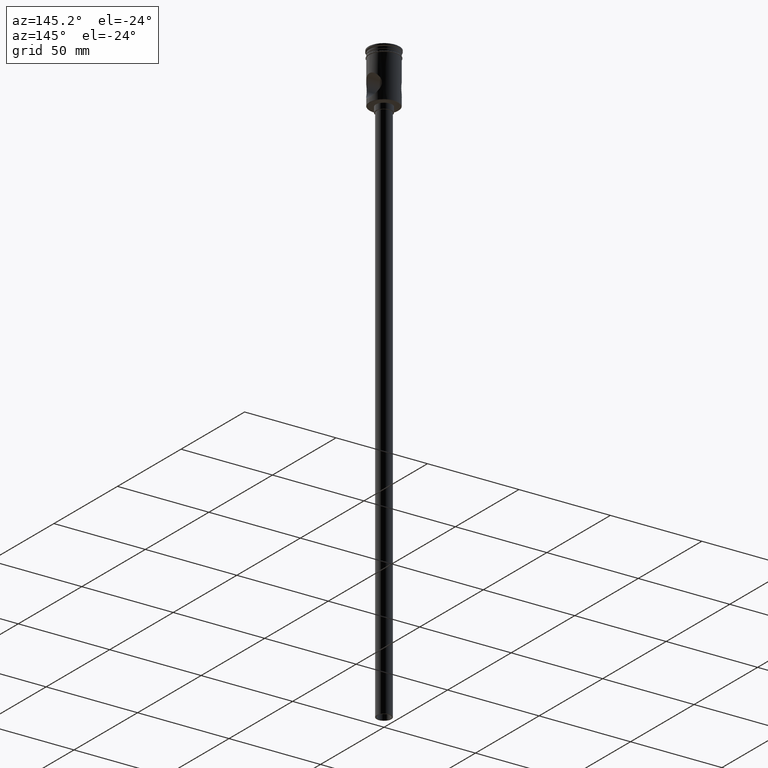
[diagram: clean part render]
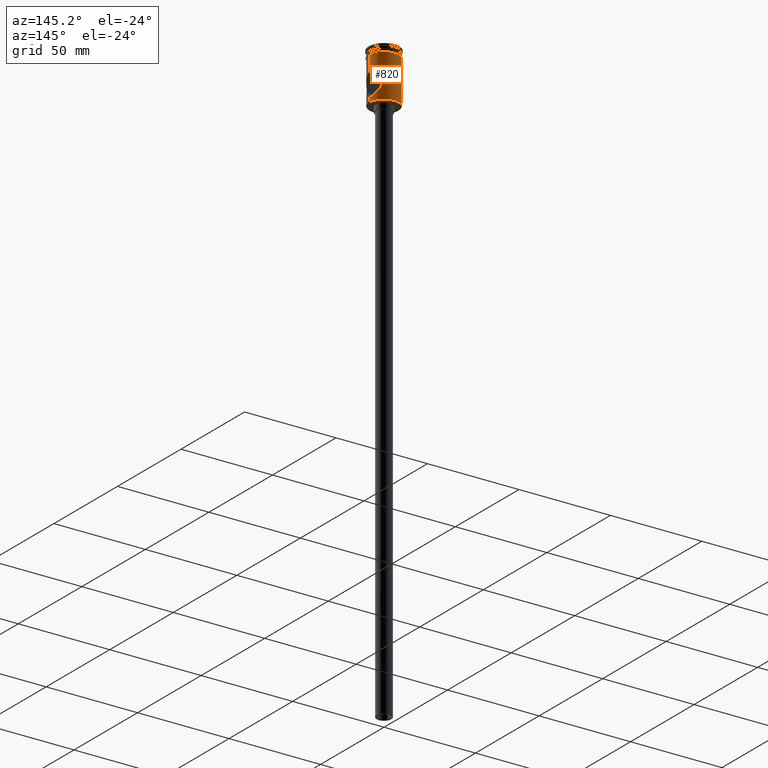
[diagram: same view with one face highlighted and labeled with its STEP entity id]
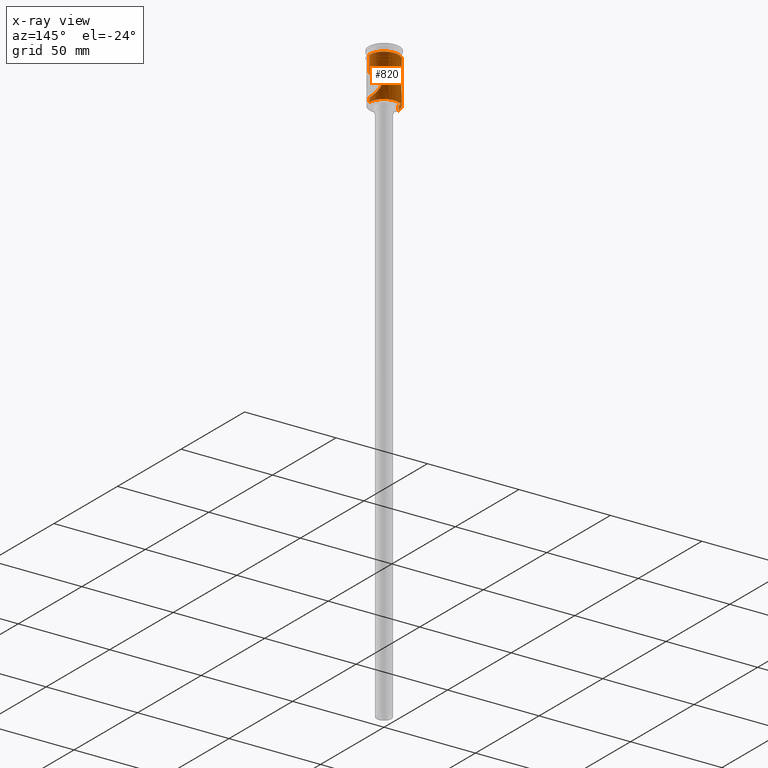
[diagram: x-ray of the same camera — body ghosted, the highlighted face saturated]
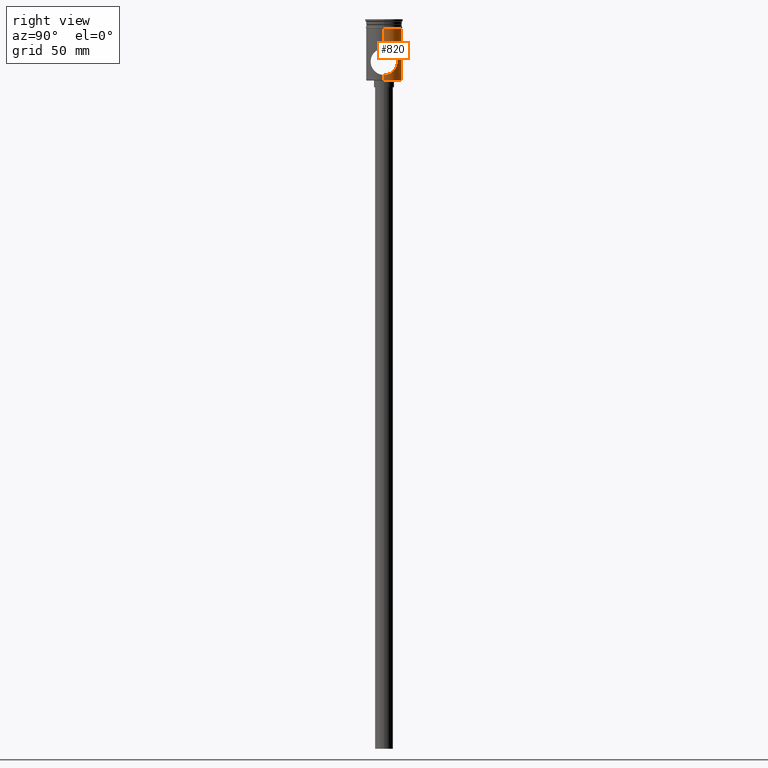
[diagram: same view with one face highlighted and labeled with its STEP entity id]
A machine part, auxiliary view. The second image highlights one B-rep face of the part: STEP entity #820.
The next image is the same camera in x-ray: the body ghosted, the highlighted face saturated — about 0% of this face is hidden behind the body in this view.
A second angle (right view) of the same face is appended — the face is thin or edge-on in the first view.
In plain terms, the highlighted cylindrical surface (edge-blend (fillet) strip) has radius 8 mm, axis along (-0, -0, 1).
Its self-contained STEP definition (entity closure, byte-faithful):
#2 = CARTESIAN_POINT ( 'NONE',  ( 7.837185563733797267, 1.617777997116385258, -13.21872241145037563 ) ) ;
#10 = CIRCLE ( 'NONE', #1136, 8.000000000000000000 ) ;
#22 = ORIENTED_EDGE ( 'NONE', *, *, #52, .F. ) ;
#46 = CARTESIAN_POINT ( 'NONE',  ( -5.528728542356219577, 5.782767647903219732, -17.38791116192859931 ) ) ;
#47 = CARTESIAN_POINT ( 'NONE',  ( -7.999999999999996447, 9.797174393178821713E-16, -27.30000000000006111 ) ) ;
#52 = EDGE_CURVE ( 'NONE', #198, #1241, #10, .T. ) ;
#59 = CARTESIAN_POINT ( 'NONE',  ( -5.717670742267800144, 5.596336919971244939, -16.82796284348983917 ) ) ;
#73 = LINE ( 'NONE', #205, #896 ) ;
#106 = CARTESIAN_POINT ( 'NONE',  ( 6.095265202635740565, 5.188384097884398471, -15.96330462474424650 ) ) ;
#114 = CARTESIAN_POINT ( 'NONE',  ( 5.934194063793421847, 5.369288296893337531, -16.29430799600839208 ) ) ;
#134 = VERTEX_POINT ( 'NONE', #47 ) ;
#142 = FACE_OUTER_BOUND ( 'NONE', #328, .T. ) ;
#146 = CARTESIAN_POINT ( 'NONE',  ( 8.000000000000000000, 0.000000000000000000, -3.999999999999997335 ) ) ;
#159 = CARTESIAN_POINT ( 'NONE',  ( -7.837238599853709964, 1.617585761159322510, -13.21864966473142644 ) ) ;
#180 = CARTESIAN_POINT ( 'NONE',  ( -5.643916026891298898, 5.673596022587067189, -20.98979656833889251 ) ) ;
#198 = VERTEX_POINT ( 'NONE', #146 ) ;
#205 = CARTESIAN_POINT ( 'NONE',  ( 7.999999999999996447, 0.000000000000000000, 0.000000000000000000 ) ) ;
#212 = CARTESIAN_POINT ( 'NONE',  ( 5.933514355146050967, 5.370016379611009860, -21.70410386792428170 ) ) ;
#219 = CARTESIAN_POINT ( 'NONE',  ( 5.717181671610946481, 5.596851870810901630, -21.17084374095739463 ) ) ;
#228 = CARTESIAN_POINT ( 'NONE',  ( 5.291508588819593406, 5.999994737873667106, -19.40979141361455262 ) ) ;
#236 = CARTESIAN_POINT ( 'NONE',  ( 7.528683465599922187, 2.731923562265712313, -13.64343887222187135 ) ) ;
#243 = CARTESIAN_POINT ( 'NONE',  ( 5.527877811876816594, 5.783575200193208588, -17.39087967744914920 ) ) ;
#279 = CARTESIAN_POINT ( 'NONE',  ( -7.999999999999996447, 9.797174393178821713E-16, 0.000000000000000000 ) ) ;
#294 = CARTESIAN_POINT ( 'NONE',  ( -5.291564416442851915, 5.999945502536777830, -19.41375567364516641 ) ) ;
#301 = CARTESIAN_POINT ( 'NONE',  ( -5.519437917285256567, 5.792285672141820108, -20.61683396324643169 ) ) ;
#325 = CARTESIAN_POINT ( 'NONE',  ( -8.000000000000000000, 0.2076584939606447855, -25.00000000000001066 ) ) ;
#328 = EDGE_LOOP ( 'NONE', ( #949, #1016, #941, #450, #22, #1228, #1042, #1198 ) ) ;
#337 = CARTESIAN_POINT ( 'NONE',  ( 6.094205644570493519, 5.189600670481776312, -22.03454661334871290 ) ) ;
#344 = CARTESIAN_POINT ( 'NONE',  ( 5.474514516413027998, 5.833807645266261943, -20.41669993575522923 ) ) ;
#351 = CARTESIAN_POINT ( 'NONE',  ( 7.392183792285975663, 3.078563709593460818, -13.83574790663121590 ) ) ;
#355 = CARTESIAN_POINT ( 'NONE',  ( 7.999999999999996447, 3.674711311745778243E-24, -13.00000000000000533 ) ) ;
#359 = CARTESIAN_POINT ( 'NONE',  ( 8.000000000000005329, 0.4110175701281992278, -13.00000000000000000 ) ) ;
#412 = CARTESIAN_POINT ( 'NONE',  ( -5.340955530264040796, 5.957261304845339112, -19.82204812401646876 ) ) ;
#418 = CARTESIAN_POINT ( 'NONE',  ( -5.650483228049789197, 5.663857365279294953, -17.01003722717182498 ) ) ;
#437 = CARTESIAN_POINT ( 'NONE',  ( -7.873944427309549354, 1.428810887794780049, -24.83093286763472918 ) ) ;
#450 = ORIENTED_EDGE ( 'NONE', *, *, #963, .T. ) ;
#460 = VERTEX_POINT ( 'NONE', #983 ) ;
#463 = CARTESIAN_POINT ( 'NONE',  ( 5.527830583457348013, 5.783619756404971390, -20.60895157510370268 ) ) ;
#470 = CARTESIAN_POINT ( 'NONE',  ( 7.522790365168889437, 2.727851025529601348, -24.34760159016909142 ) ) ;
#478 = CARTESIAN_POINT ( 'NONE',  ( 7.845111153738295151, 1.617379738080571894, -24.79213429196722984 ) ) ;
#482 = VERTEX_POINT ( 'NONE', #1000 ) ;
#494 = EDGE_CURVE ( 'NONE', #482, #460, #638, .T. ) ;
#499 = CARTESIAN_POINT ( 'NONE',  ( -5.937193840094636244, 5.363245192895813140, -21.69666719771004892 ) ) ;
#507 = DIRECTION ( 'NONE',  ( 1.000000000000000000, 0.000000000000000000, 0.000000000000000000 ) ) ;
#521 = CARTESIAN_POINT ( 'NONE',  ( -5.351298131410346492, 5.946815791029208320, -18.17692857331259404 ) ) ;
#536 = DIRECTION ( 'NONE',  ( -0.000000000000000000, -0.000000000000000000, 1.000000000000000000 ) ) ;
#559 = CARTESIAN_POINT ( 'NONE',  ( -7.991786201921672550, 0.4171226887462312072, -24.98906086098487123 ) ) ;
#562 = CARTESIAN_POINT ( 'NONE',  ( 7.697512327894634687, 2.187332674909133967, -13.40941737064048489 ) ) ;
#566 = CARTESIAN_POINT ( 'NONE',  ( -7.999999999999996447, 0.000000000000000000, -25.00000000000000000 ) ) ;
#569 = CARTESIAN_POINT ( 'NONE',  ( 7.095043372362062506, 3.712647680833710329, -23.72917063698660911 ) ) ;
#577 = CARTESIAN_POINT ( 'NONE',  ( 6.600129246405443517, 4.531693863514761667, -22.95038707538193634 ) ) ;
#584 = CARTESIAN_POINT ( 'NONE',  ( 5.648998666191807239, 5.665331633315698667, -20.98569890523691583 ) ) ;
#616 = CARTESIAN_POINT ( 'NONE',  ( -8.000000000000000000, 9.797174393178825657E-16, -3.999999999999997335 ) ) ;
#619 = CARTESIAN_POINT ( 'NONE',  ( -7.991997215772791208, 0.4127757007396791189, -13.01065792661720621 ) ) ;
#624 = AXIS2_PLACEMENT_3D ( 'NONE', #989, #754, #507 ) ;
#625 = EDGE_CURVE ( 'NONE', #753, #198, #809, .T. ) ;
#634 = VERTEX_POINT ( 'NONE', #1422 ) ;
#637 = CARTESIAN_POINT ( 'NONE',  ( -5.932300773519818549, 5.371293148560216224, -16.29886334358921118 ) ) ;
#638 = B_SPLINE_CURVE_WITH_KNOTS ( 'NONE', 3,
 ( #745, #643, #619, #977, #1445, #1107, #159, #859, #1341, #1113, #1452, #1467, #1330, #1216, #1100, #883, #637, #59, #418, #46, #756, #1237, #521, #770, #990, #294, #412, #301, #180, #1123, #499, #966, #1438, #852, #1369, #1244, #1267, #1257, #904, #1362, #1382, #1490, #1480, #1145, #437, #889, #1375, #559, #325, #566 ),
 .UNSPECIFIED., .F., .F.,
 ( 4, 2, 2, 2, 2, 2, 2, 2, 2, 2, 2, 2, 2, 2, 2, 2, 2, 2, 2, 2, 2, 2, 2, 2, 4 ),
 ( 0.01965158138171595875, 0.02026440806685870719, 0.02087723475200145562, 0.02149006143714420405, 0.02210288812228695249, 0.02332854149257245283, 0.02455419486285795316, 0.02577984823314345697, 0.02700550160342895384, 0.02761832828857171268, 0.02823115497371446458, 0.02884398165885721996, 0.02945680834399997533, 0.03068246171428548608, 0.03190811508457099682, 0.03252094176971375566, 0.03313376845485650757, 0.03435942182514201831, 0.03497224851028477716, 0.03558507519542753600, 0.03681072856571306062, 0.03742355525085581947, 0.03803638193599857831, 0.03864920862114134409, 0.03926203530628410293 ),
 .UNSPECIFIED. ) ;
#643 = CARTESIAN_POINT ( 'NONE',  ( -8.000000000000005329, 0.2050786897151790633, -13.00000000000000355 ) ) ;
#674 = CIRCLE ( 'NONE', #749, 7.999999999999996447 ) ;
#684 = CARTESIAN_POINT ( 'NONE',  ( 6.933994888437764459, 4.002208169122734027, -23.48599343389724581 ) ) ;
#691 = CARTESIAN_POINT ( 'NONE',  ( 5.303431297491207452, 5.989541423528398134, -18.59082079987659952 ) ) ;
#702 = CARTESIAN_POINT ( 'NONE',  ( 7.875627092851996913, 1.419784017982118174, -13.16679506876979033 ) ) ;
#708 = CARTESIAN_POINT ( 'NONE',  ( 7.999999999999996447, 3.674711311745778243E-24, -13.00000000000000533 ) ) ;
#741 = B_SPLINE_CURVE_WITH_KNOTS ( 'NONE', 3,
 ( #1031, #1501, #1386, #478, #823, #1509, #470, #914, #1154, #569, #684, #577, #1394, #337, #212, #219, #584, #463, #344, #805, #228, #1401, #691, #1162, #1047, #1408, #243, #1171, #1038, #114, #106, #1054, #1295, #812, #1517, #351, #236, #562, #1284, #2, #702, #937, #359, #708 ),
 .UNSPECIFIED., .F., .F.,
 ( 4, 2, 2, 2, 2, 2, 2, 2, 2, 2, 2, 2, 2, 2, 2, 2, 2, 2, 2, 2, 2, 4 ),
 ( 0.000000000000000000, 0.001228223836357238098, 0.002456447672714476196, 0.003070559590893096654, 0.003684671509071716679, 0.004912895345428957596, 0.006141119181786197645, 0.007369343018143437694, 0.007983454936322062490, 0.008597566854500688152, 0.009825790690857941212, 0.01043990260903657034, 0.01105401452721520121, 0.01166812644539383034, 0.01228223836357246121, 0.01351046219992971080, 0.01473868603628695692, 0.01596690987264420825, 0.01719513370900145610, 0.01780924562718008350, 0.01842335754535870743, 0.01965158138171595528 ),
 .UNSPECIFIED. ) ;
#745 = CARTESIAN_POINT ( 'NONE',  ( -7.999999999999996447, 9.797174356432676922E-16, -13.00000000000000533 ) ) ;
#749 = AXIS2_PLACEMENT_3D ( 'NONE', #1373, #1026, #1017 ) ;
#753 = VERTEX_POINT ( 'NONE', #355 ) ;
#754 = DIRECTION ( 'NONE',  ( -0.000000000000000000, -0.000000000000000000, 1.000000000000000000 ) ) ;
#756 = CARTESIAN_POINT ( 'NONE',  ( -5.474655730134190712, 5.833676180865436933, -17.58271699258815346 ) ) ;
#760 = CYLINDRICAL_SURFACE ( 'NONE', #624, 7.999999999999996447 ) ;
#770 = CARTESIAN_POINT ( 'NONE',  ( -5.303887827319022641, 5.989138807782576457, -18.58493257538529875 ) ) ;
#805 = CARTESIAN_POINT ( 'NONE',  ( 5.341952933818355120, 5.956343020881682548, -19.82666753736794618 ) ) ;
#807 = CARTESIAN_POINT ( 'NONE',  ( 7.999999999999996447, 0.000000000000000000, -27.30000000000006111 ) ) ;
#809 = LINE ( 'NONE', #952, #1014 ) ;
#812 = CARTESIAN_POINT ( 'NONE',  ( 6.935409427810199645, 3.999736926290286210, -14.51184028921589508 ) ) ;
#820 = ADVANCED_FACE ( 'NONE', ( #142 ), #760, .T. ) ;
#823 = CARTESIAN_POINT ( 'NONE',  ( 7.753317466694376492, 2.007594612796118838, -24.66794618566808239 ) ) ;
#852 = CARTESIAN_POINT ( 'NONE',  ( -6.428408221799558397, 4.769379950103072474, -22.65971221525529344 ) ) ;
#859 = CARTESIAN_POINT ( 'NONE',  ( -7.748015674478848425, 2.001785621332211385, -13.34018995724741607 ) ) ;
#883 = CARTESIAN_POINT ( 'NONE',  ( -6.092548161367386861, 5.191587824295140763, -15.96869401757640716 ) ) ;
#889 = CARTESIAN_POINT ( 'NONE',  ( -7.935826362832939296, 1.031097151778473719, -24.91423007022369518 ) ) ;
#895 = VECTOR ( 'NONE', #536, 1000.000000000000000 ) ;
#896 = VECTOR ( 'NONE', #1007, 1000.000000000000000 ) ;
#904 = CARTESIAN_POINT ( 'NONE',  ( -7.169789722930493880, 3.553058473854127985, -23.83860449815402305 ) ) ;
#914 = CARTESIAN_POINT ( 'NONE',  ( 7.390068150002869096, 3.069273339745732798, -24.15922233971244637 ) ) ;
#935 = DIRECTION ( 'NONE',  ( -0.000000000000000000, -0.000000000000000000, 1.000000000000000000 ) ) ;
#937 = CARTESIAN_POINT ( 'NONE',  ( 7.968510204580123713, 0.8173127755210328749, -13.04179007278580293 ) ) ;
#941 = ORIENTED_EDGE ( 'NONE', *, *, #494, .F. ) ;
#949 = ORIENTED_EDGE ( 'NONE', *, *, #984, .T. ) ;
#952 = CARTESIAN_POINT ( 'NONE',  ( 7.999999999999996447, 0.000000000000000000, 0.000000000000000000 ) ) ;
#963 = EDGE_CURVE ( 'NONE', #482, #1241, #1488, .T. ) ;
#966 = CARTESIAN_POINT ( 'NONE',  ( -6.096832542624039064, 5.181052271612227145, -22.03201423696314265 ) ) ;
#977 = CARTESIAN_POINT ( 'NONE',  ( -7.960178332295269499, 0.8233858112076458680, -13.05318252701360215 ) ) ;
#983 = CARTESIAN_POINT ( 'NONE',  ( -7.999999999999996447, 0.000000000000000000, -25.00000000000000000 ) ) ;
#984 = EDGE_CURVE ( 'NONE', #1175, #134, #674, .T. ) ;
#989 = CARTESIAN_POINT ( 'NONE',  ( 0.000000000000000000, 0.000000000000000000, 0.000000000000000000 ) ) ;
#990 = CARTESIAN_POINT ( 'NONE',  ( -5.291471813663452650, 6.000027170513403618, -18.79430872448704548 ) ) ;
#1000 = CARTESIAN_POINT ( 'NONE',  ( -7.999999999999996447, 9.797174356432676922E-16, -13.00000000000000533 ) ) ;
#1004 = CARTESIAN_POINT ( 'NONE',  ( -7.999999999999996447, 9.797174393178821713E-16, 0.000000000000000000 ) ) ;
#1007 = DIRECTION ( 'NONE',  ( -0.000000000000000000, -0.000000000000000000, 1.000000000000000000 ) ) ;
#1014 = VECTOR ( 'NONE', #935, 1000.000000000000000 ) ;
#1016 = ORIENTED_EDGE ( 'NONE', *, *, #1251, .T. ) ;
#1017 = DIRECTION ( 'NONE',  ( -1.000000000000000000, 0.000000000000000000, 0.000000000000000000 ) ) ;
#1026 = DIRECTION ( 'NONE',  ( -0.000000000000000000, -0.000000000000000000, 1.000000000000000000 ) ) ;
#1031 = CARTESIAN_POINT ( 'NONE',  ( 7.999999999999996447, 0.000000000000000000, -25.00000000000000000 ) ) ;
#1038 = CARTESIAN_POINT ( 'NONE',  ( 5.717260744181801968, 5.596776624407745260, -16.82891779856496584 ) ) ;
#1042 = ORIENTED_EDGE ( 'NONE', *, *, #1469, .F. ) ;
#1047 = CARTESIAN_POINT ( 'NONE',  ( 5.385705311345802215, 5.915896059439944565, -17.97877459268462985 ) ) ;
#1054 = CARTESIAN_POINT ( 'NONE',  ( 6.428305707969257377, 4.769535948342530141, -15.34044057477574263 ) ) ;
#1080 = DIRECTION ( 'NONE',  ( -0.000000000000000000, -0.000000000000000000, 1.000000000000000000 ) ) ;
#1100 = CARTESIAN_POINT ( 'NONE',  ( -6.426120009460147386, 4.772495035090829951, -15.34422494722665498 ) ) ;
#1107 = CARTESIAN_POINT ( 'NONE',  ( -7.875112291323477898, 1.422312626392037371, -13.16749109191733957 ) ) ;
#1113 = CARTESIAN_POINT ( 'NONE',  ( -7.526744538711455768, 2.737435864263675800, -13.64615235571891283 ) ) ;
#1123 = CARTESIAN_POINT ( 'NONE',  ( -5.859839614964069909, 5.447306643968808260, -21.52271597277527704 ) ) ;
#1136 = AXIS2_PLACEMENT_3D ( 'NONE', #1402, #1302, #1270 ) ;
#1145 = CARTESIAN_POINT ( 'NONE',  ( -7.835858405065169840, 1.624274161447295306, -24.77948060674688691 ) ) ;
#1154 = CARTESIAN_POINT ( 'NONE',  ( 7.318622431870950074, 3.235523761949524069, -24.05653912422262408 ) ) ;
#1162 = CARTESIAN_POINT ( 'NONE',  ( 5.350380422783078238, 5.947639811124362907, -18.18292303966837764 ) ) ;
#1171 = CARTESIAN_POINT ( 'NONE',  ( 5.649101405964834122, 5.665229783906036154, -17.01400357395085550 ) ) ;
#1175 = VERTEX_POINT ( 'NONE', #807 ) ;
#1198 = ORIENTED_EDGE ( 'NONE', *, *, #1424, .F. ) ;
#1216 = CARTESIAN_POINT ( 'NONE',  ( -6.599412474671010109, 4.532668071879429661, -15.05083651367930742 ) ) ;
#1228 = ORIENTED_EDGE ( 'NONE', *, *, #625, .F. ) ;
#1237 = CARTESIAN_POINT ( 'NONE',  ( -5.386132118162890059, 5.915506229595402843, -17.97664524532638453 ) ) ;
#1241 = VERTEX_POINT ( 'NONE', #616 ) ;
#1244 = CARTESIAN_POINT ( 'NONE',  ( -6.849379830468325991, 4.136484081211206920, -23.35028667483849318 ) ) ;
#1251 = EDGE_CURVE ( 'NONE', #134, #460, #1319, .T. ) ;
#1257 = CARTESIAN_POINT ( 'NONE',  ( -7.092607887154919410, 3.704399776580871606, -23.72372303530257298 ) ) ;
#1267 = CARTESIAN_POINT ( 'NONE',  ( -6.932510933914958429, 3.995992554649490547, -23.47975228357175581 ) ) ;
#1270 = DIRECTION ( 'NONE',  ( 1.000000000000000000, 0.000000000000000000, 0.000000000000000000 ) ) ;
#1284 = CARTESIAN_POINT ( 'NONE',  ( 7.748219018226238042, 2.000946089715710308, -13.33991246093565231 ) ) ;
#1290 = VECTOR ( 'NONE', #1080, 1000.000000000000000 ) ;
#1295 = CARTESIAN_POINT ( 'NONE',  ( 6.602014270987715427, 4.528930003495660550, -15.04648686704185856 ) ) ;
#1302 = DIRECTION ( 'NONE',  ( -0.000000000000000000, -0.000000000000000000, 1.000000000000000000 ) ) ;
#1319 = LINE ( 'NONE', #279, #1290 ) ;
#1330 = CARTESIAN_POINT ( 'NONE',  ( -6.932348065000020654, 4.004981294134720926, -14.51657531287133551 ) ) ;
#1341 = CARTESIAN_POINT ( 'NONE',  ( -7.696444758544893183, 2.191140728972409857, -13.41088448561661650 ) ) ;
#1362 = CARTESIAN_POINT ( 'NONE',  ( -7.390764062597866335, 3.081727328898060225, -24.16219223809560290 ) ) ;
#1369 = CARTESIAN_POINT ( 'NONE',  ( -6.598787025335902889, 4.533655066149032464, -22.94815787054485412 ) ) ;
#1373 = CARTESIAN_POINT ( 'NONE',  ( 0.000000000000000000, 0.000000000000000000, -27.30000000000006111 ) ) ;
#1375 = CARTESIAN_POINT ( 'NONE',  ( -7.959626168830804538, 0.8288481689406965724, -24.94607871179749026 ) ) ;
#1382 = CARTESIAN_POINT ( 'NONE',  ( -7.524109323248031167, 2.744670825570129757, -24.35015039146814786 ) ) ;
#1386 = CARTESIAN_POINT ( 'NONE',  ( 7.967750386662298290, 0.8225813075346128933, -24.95718867133071939 ) ) ;
#1394 = CARTESIAN_POINT ( 'NONE',  ( 6.426683704192725166, 4.771690908225659555, -22.65669169386860204 ) ) ;
#1401 = CARTESIAN_POINT ( 'NONE',  ( 5.291499639625487639, 6.000002630321015218, -18.79521987294451435 ) ) ;
#1402 = CARTESIAN_POINT ( 'NONE',  ( 0.000000000000000000, 0.000000000000000000, -3.999999999999997335 ) ) ;
#1408 = CARTESIAN_POINT ( 'NONE',  ( 5.474412988877314312, 5.833905236971784980, -17.58356884929881048 ) ) ;
#1422 = CARTESIAN_POINT ( 'NONE',  ( 7.999999999999996447, 0.000000000000000000, -25.00000000000000000 ) ) ;
#1424 = EDGE_CURVE ( 'NONE', #1175, #634, #73, .T. ) ;
#1438 = CARTESIAN_POINT ( 'NONE',  ( -6.178944471944528338, 5.083158423289838801, -22.19321469611284314 ) ) ;
#1445 = CARTESIAN_POINT ( 'NONE',  ( -7.936580320267932365, 1.025211991777383647, -13.08475919831038858 ) ) ;
#1452 = CARTESIAN_POINT ( 'NONE',  ( -7.392840448243055640, 3.077268624920922235, -13.83477139314359405 ) ) ;
#1467 = CARTESIAN_POINT ( 'NONE',  ( -7.094299755750172132, 3.714105956844027556, -14.27193636968089585 ) ) ;
#1469 = EDGE_CURVE ( 'NONE', #634, #753, #741, .T. ) ;
#1480 = CARTESIAN_POINT ( 'NONE',  ( -7.746242821178788596, 2.008647717025523693, -24.65738428818450245 ) ) ;
#1488 = LINE ( 'NONE', #1004, #895 ) ;
#1490 = CARTESIAN_POINT ( 'NONE',  ( -7.694334963991131815, 2.198537974230715175, -24.58621182590502485 ) ) ;
#1501 = CARTESIAN_POINT ( 'NONE',  ( 7.999999999999998224, 0.4161879994587696641, -25.00000000000000711 ) ) ;
#1509 = CARTESIAN_POINT ( 'NONE',  ( 7.584438918382732986, 2.551936178765121799, -24.43384157505064636 ) ) ;
#1517 = CARTESIAN_POINT ( 'NONE',  ( 7.095827365271405895, 3.710952672189014923, -14.26968452820924682 ) ) ;